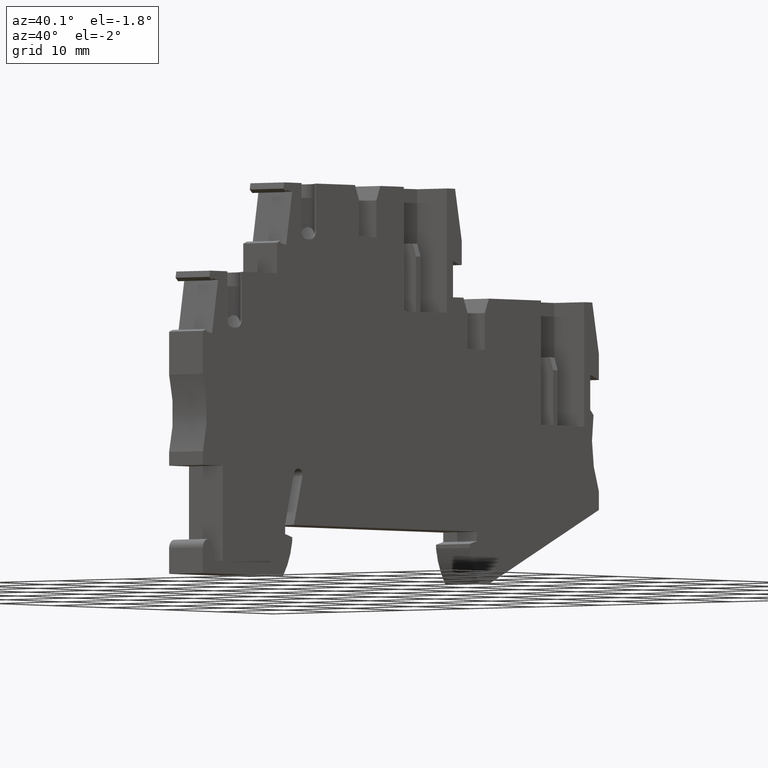
[diagram: clean part render]
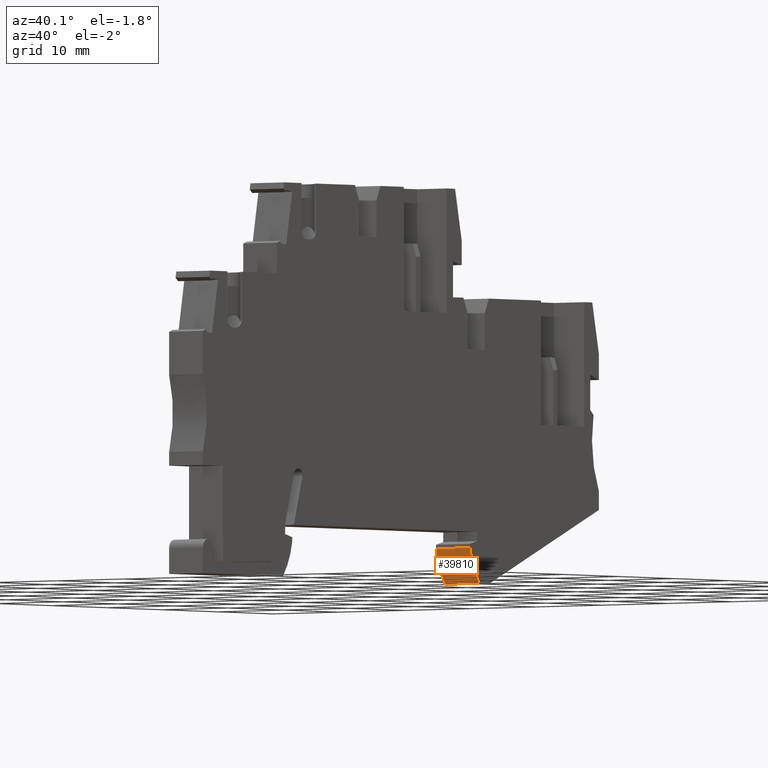
[diagram: same view with one face highlighted and labeled with its STEP entity id]
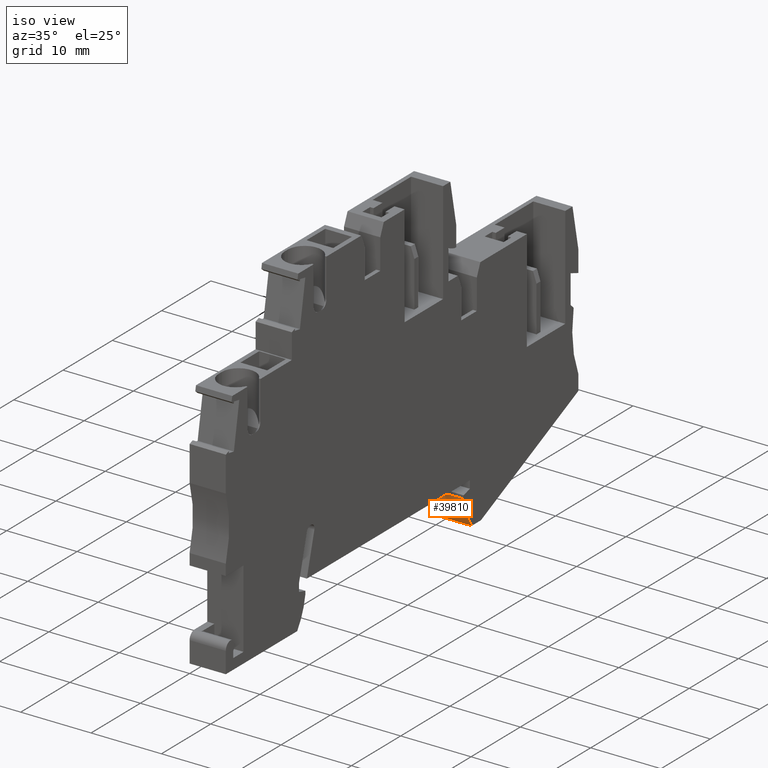
[diagram: same view with one face highlighted and labeled with its STEP entity id]
A machine part, auxiliary view. The second image highlights one B-rep face of the part: STEP entity #39810.
A second angle (iso view) of the same face is appended — the face is thin or edge-on in the first view.
In plain terms, the highlighted cylindrical surface (partial cylindrical patch) has radius 9.5 mm, axis along (-1, 0, -0).
Its self-contained STEP definition (entity closure, byte-faithful):
#5030=CARTESIAN_POINT('',(183.568635760428,0.596713822169631,48.52));
#5040=VERTEX_POINT('',#5030);
#5070=CARTESIAN_POINT('',(192.962608439804,2.0120856104678,48.52));
#5080=DIRECTION('',(0.,0.,-1.));
#5090=DIRECTION('',(-1.,0.,0.));
#5100=AXIS2_PLACEMENT_3D('',#5070,#5080,#5090);
#5110=CIRCLE('',#5100,9.499999999999);
#5120=CARTESIAN_POINT('',(185.22757941356,-3.5032861778298,48.52));
#5130=VERTEX_POINT('',#5120);
#5140=EDGE_CURVE('',#5130,#5040,#5110,.T.);
#8500=CARTESIAN_POINT('',(185.22757941356,-3.5032861778298,
53.6699999999994));
#8510=VERTEX_POINT('',#8500);
#8540=CARTESIAN_POINT('',(192.962608439804,2.0120856104678,
53.6699999999994));
#8550=DIRECTION('',(0.,0.,-1.));
#8560=DIRECTION('',(-1.,0.,0.));
#8570=AXIS2_PLACEMENT_3D('',#8540,#8550,#8560);
#8580=CIRCLE('',#8570,9.499999999999);
#8590=CARTESIAN_POINT('',(183.568635760428,0.596713822169631,
53.6699999999994));
#8600=VERTEX_POINT('',#8590);
#8610=EDGE_CURVE('',#8510,#8600,#8580,.T.);
#38510=CARTESIAN_POINT('',(185.22757941356,-3.5032861778298,
48.5199999999994));
#38520=DIRECTION('',(0.,0.,-1.));
#38530=VECTOR('',#38520,1.);
#38540=LINE('',#38510,#38530);
#38550=EDGE_CURVE('',#8510,#5130,#38540,.T.);
#39530=CARTESIAN_POINT('',(183.568635760428,0.596713822169789,
48.5199999999994));
#39540=DIRECTION('',(0.,0.,-1.));
#39550=VECTOR('',#39540,1.);
#39560=LINE('',#39530,#39550);
#39570=EDGE_CURVE('',#8600,#5040,#39560,.T.);
#39700=CARTESIAN_POINT('',(192.962608439804,2.0120856104678,
48.5199999999994));
#39710=DIRECTION('',(0.,0.,-1.));
#39720=DIRECTION('',(-1.,0.,0.));
#39730=AXIS2_PLACEMENT_3D('',#39700,#39710,#39720);
#39740=CYLINDRICAL_SURFACE('',#39730,9.499999999999);
#39750=ORIENTED_EDGE('',*,*,#39570,.T.);
#39760=ORIENTED_EDGE('',*,*,#8610,.T.);
#39770=ORIENTED_EDGE('',*,*,#38550,.F.);
#39780=ORIENTED_EDGE('',*,*,#5140,.F.);
#39790=EDGE_LOOP('',(#39780,#39770,#39760,#39750));
#39800=FACE_OUTER_BOUND('',#39790,.T.);
#39810=ADVANCED_FACE('',(#39800),#39740,.T.);